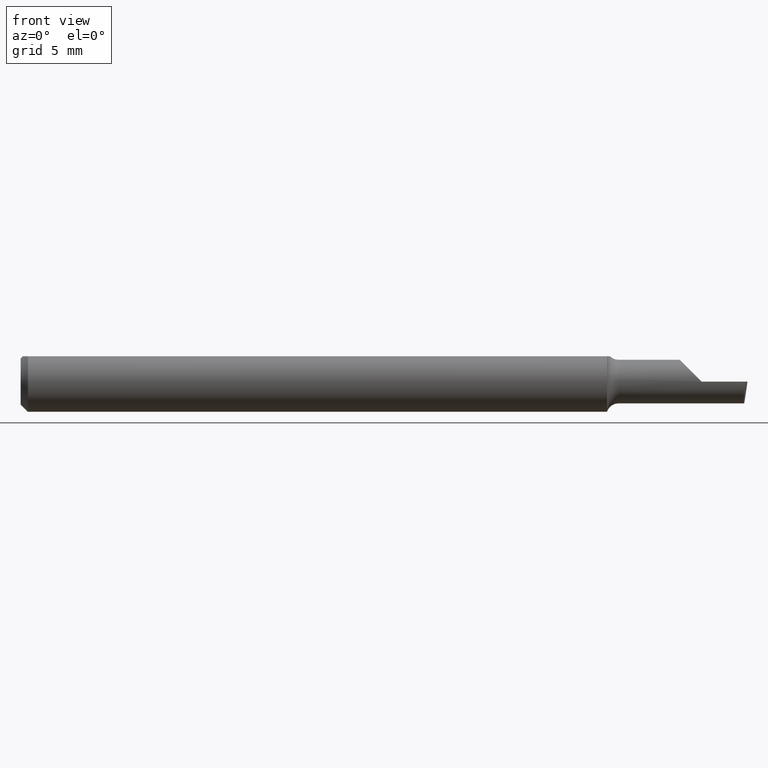
[diagram: clean part render]
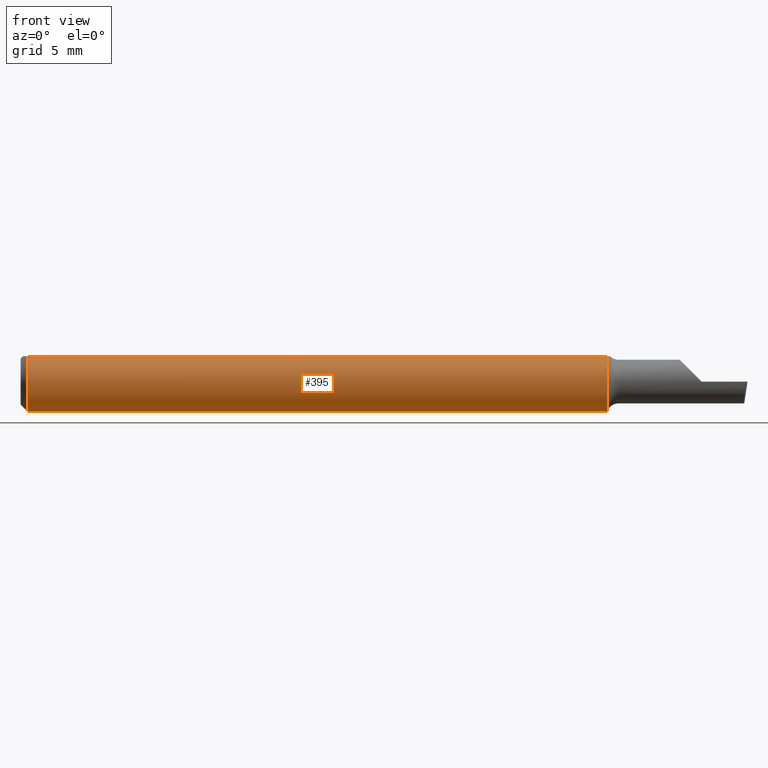
[diagram: same view with one face highlighted and labeled with its STEP entity id]
A machine part, front view. The second image highlights one B-rep face of the part: STEP entity #395.
In plain terms, the highlighted cylindrical surface (edge-blend (fillet) strip) has radius 1.5837 mm, axis along (-1, -0, -0).
Its self-contained STEP definition (entity closure, byte-faithful):
#3 = DIRECTION ( 'NONE',  ( 1.000000000000000000, 0.000000000000000000, 0.000000000000000000 ) ) ;
#6 = DIRECTION ( 'NONE',  ( 1.000000000000000000, 0.000000000000000000, 0.000000000000000000 ) ) ;
#16 = CIRCLE ( 'NONE', #350, 0.06235000000000000264 ) ;
#43 = CARTESIAN_POINT ( 'NONE',  ( 0.01500000000000134386, -0.03386738844375219992, 0.05235000000000000764 ) ) ;
#50 = AXIS2_PLACEMENT_3D ( 'NONE', #373, #89, #428 ) ;
#61 = EDGE_CURVE ( 'NONE', #367, #444, #399, .T. ) ;
#62 = EDGE_CURVE ( 'NONE', #378, #406, #141, .T. ) ;
#65 = DIRECTION ( 'NONE',  ( 1.000000000000000000, 0.000000000000000000, 0.000000000000000000 ) ) ;
#89 = DIRECTION ( 'NONE',  ( -1.000000000000000000, -0.000000000000000000, -0.000000000000000000 ) ) ;
#92 = DIRECTION ( 'NONE',  ( 1.000000000000000000, -0.000000000000000000, -0.000000000000000000 ) ) ;
#93 = AXIS2_PLACEMENT_3D ( 'NONE', #573, #92, #472 ) ;
#94 = ORIENTED_EDGE ( 'NONE', *, *, #568, .F. ) ;
#109 = EDGE_CURVE ( 'NONE', #540, #406, #256, .T. ) ;
#111 = DIRECTION ( 'NONE',  ( 0.000000000000000000, 0.000000000000000000, -1.000000000000000000 ) ) ;
#112 = DIRECTION ( 'NONE',  ( 0.000000000000000000, 0.000000000000000000, -1.000000000000000000 ) ) ;
#126 = ORIENTED_EDGE ( 'NONE', *, *, #334, .T. ) ;
#141 = CIRCLE ( 'NONE', #248, 0.06235000000000000264 ) ;
#151 = CIRCLE ( 'NONE', #220, 0.06235000000000000264 ) ;
#160 = EDGE_LOOP ( 'NONE', ( #94, #548, #470, #126, #283, #362 ) ) ;
#200 = CIRCLE ( 'NONE', #93, 0.06235000000000000264 ) ;
#215 = VERTEX_POINT ( 'NONE', #509 ) ;
#220 = AXIS2_PLACEMENT_3D ( 'NONE', #425, #331, #514 ) ;
#248 = AXIS2_PLACEMENT_3D ( 'NONE', #439, #6, #112 ) ;
#256 = LINE ( 'NONE', #294, #298 ) ;
#283 = ORIENTED_EDGE ( 'NONE', *, *, #109, .T. ) ;
#294 = CARTESIAN_POINT ( 'NONE',  ( 1.500000000000000222, 0.03386738844375219298, 0.05235000000000000764 ) ) ;
#298 = VECTOR ( 'NONE', #65, 39.37007874015748143 ) ;
#331 = DIRECTION ( 'NONE',  ( 1.000000000000000000, -0.000000000000000000, -0.000000000000000000 ) ) ;
#334 = EDGE_CURVE ( 'NONE', #215, #540, #151, .T. ) ;
#341 = CARTESIAN_POINT ( 'NONE',  ( 1.210199212197912599, 0.000000000000000000, 0.000000000000000000 ) ) ;
#350 = AXIS2_PLACEMENT_3D ( 'NONE', #341, #3, #111 ) ;
#351 = CARTESIAN_POINT ( 'NONE',  ( 1.500000000000000222, -0.03386738844375219298, 0.05235000000000000764 ) ) ;
#362 = ORIENTED_EDGE ( 'NONE', *, *, #62, .F. ) ;
#367 = VERTEX_POINT ( 'NONE', #522 ) ;
#373 = CARTESIAN_POINT ( 'NONE',  ( 1.500000000000000222, 0.000000000000000000, 0.000000000000000000 ) ) ;
#378 = VERTEX_POINT ( 'NONE', #419 ) ;
#395 = ADVANCED_FACE ( 'NONE', ( #519 ), #606, .T. ) ;
#399 = LINE ( 'NONE', #351, #487 ) ;
#406 = VERTEX_POINT ( 'NONE', #421 ) ;
#419 = CARTESIAN_POINT ( 'NONE',  ( 1.210199212197912599, 7.635672792683735886E-18, -0.06234999999999991938 ) ) ;
#421 = CARTESIAN_POINT ( 'NONE',  ( 1.210199212197912599, 0.03386738844375219298, 0.05235000000000000764 ) ) ;
#425 = CARTESIAN_POINT ( 'NONE',  ( 0.01500000000000134212, 0.000000000000000000, 0.000000000000000000 ) ) ;
#428 = DIRECTION ( 'NONE',  ( 0.000000000000000000, 0.000000000000000000, 1.000000000000000000 ) ) ;
#439 = CARTESIAN_POINT ( 'NONE',  ( 1.210199212197912599, 0.000000000000000000, 0.000000000000000000 ) ) ;
#440 = EDGE_CURVE ( 'NONE', #444, #215, #200, .T. ) ;
#444 = VERTEX_POINT ( 'NONE', #43 ) ;
#470 = ORIENTED_EDGE ( 'NONE', *, *, #440, .T. ) ;
#472 = DIRECTION ( 'NONE',  ( 0.000000000000000000, 0.000000000000000000, -1.000000000000000000 ) ) ;
#482 = CARTESIAN_POINT ( 'NONE',  ( 0.01500000000000134212, 0.03386738844375219992, 0.05235000000000000764 ) ) ;
#487 = VECTOR ( 'NONE', #587, 39.37007874015748143 ) ;
#509 = CARTESIAN_POINT ( 'NONE',  ( 0.01500000000000134212, 0.000000000000000000, -0.06235000000000000264 ) ) ;
#514 = DIRECTION ( 'NONE',  ( 0.000000000000000000, 0.000000000000000000, -1.000000000000000000 ) ) ;
#519 = FACE_OUTER_BOUND ( 'NONE', #160, .T. ) ;
#522 = CARTESIAN_POINT ( 'NONE',  ( 1.210199212197856422, -0.03386738844407404664, 0.05235000000000000764 ) ) ;
#540 = VERTEX_POINT ( 'NONE', #482 ) ;
#548 = ORIENTED_EDGE ( 'NONE', *, *, #61, .T. ) ;
#568 = EDGE_CURVE ( 'NONE', #367, #378, #16, .T. ) ;
#573 = CARTESIAN_POINT ( 'NONE',  ( 0.01500000000000134212, 0.000000000000000000, 0.000000000000000000 ) ) ;
#587 = DIRECTION ( 'NONE',  ( -1.000000000000000000, -0.000000000000000000, -0.000000000000000000 ) ) ;
#606 = CYLINDRICAL_SURFACE ( 'NONE', #50, 0.06235000000000000264 ) ;